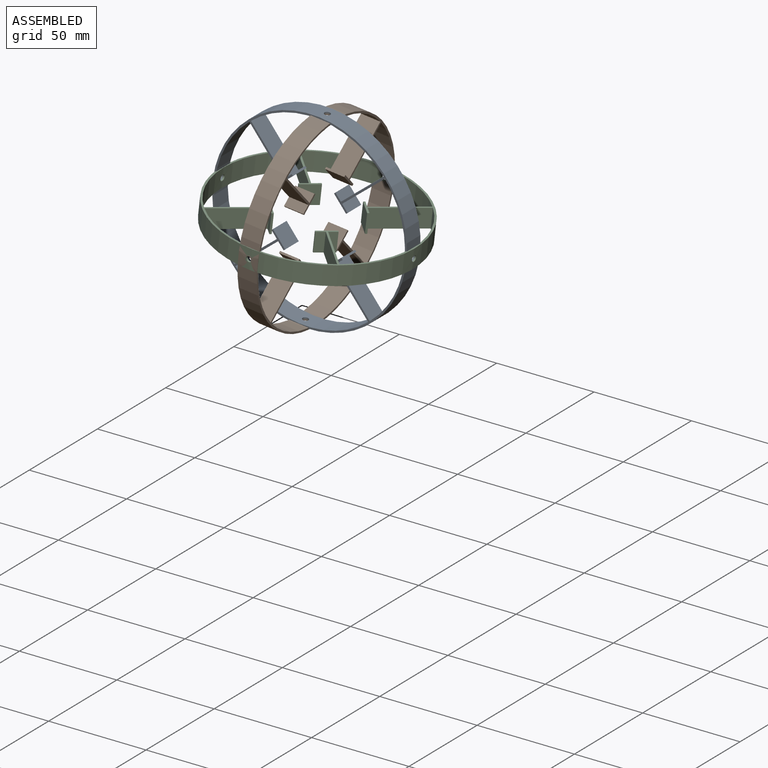
[diagram: assembled view]
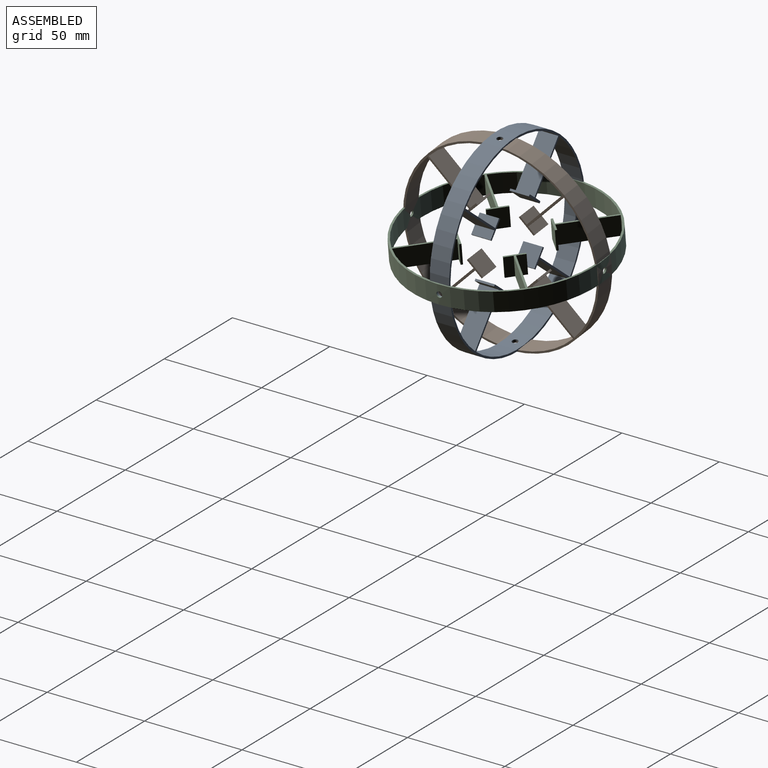
[diagram: assembled view, second angle]
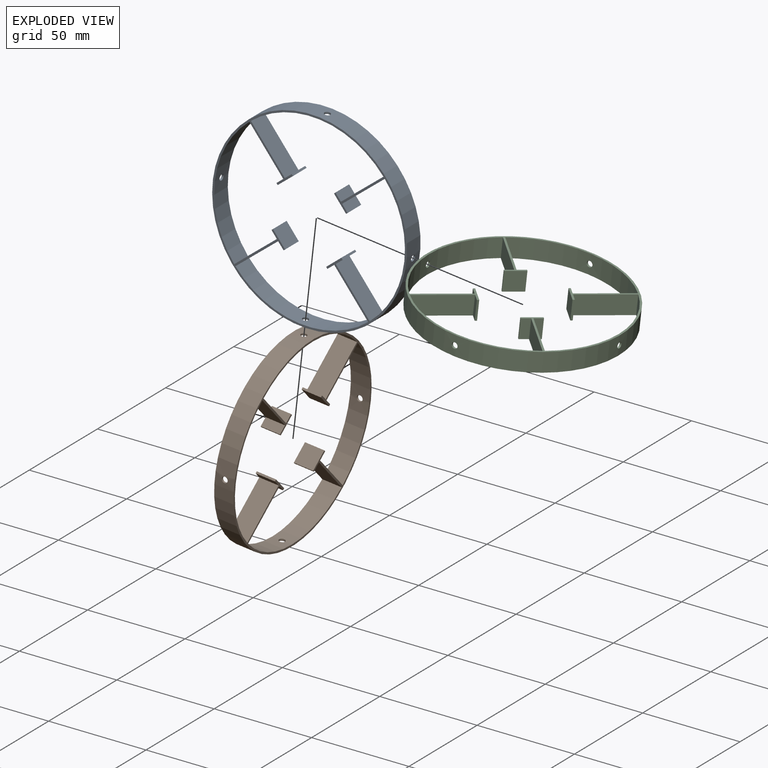
[diagram: exploded view]
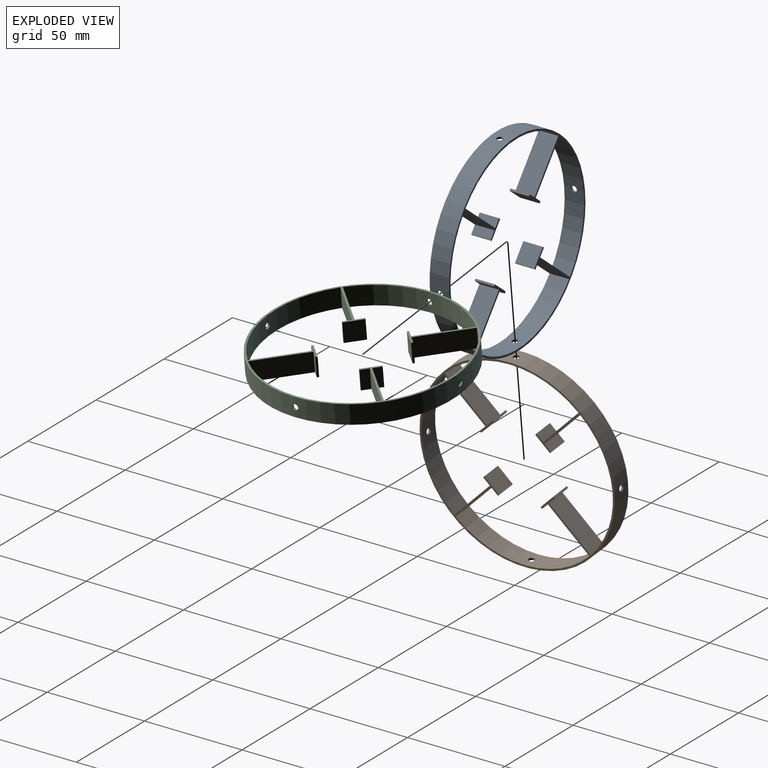
[diagram: exploded view, second angle]
ASSEMBLY  parts=3 mates=2
PART A: 39 faces, bbox 100x100x10 mm
  f0: cylinder r=49mm len=48.5mm, axis (0,0,-1), area 752.6mm2, adj f5,f6,f9,f14,f31
  f1: cylinder r=49mm len=48.5mm, axis (0,0,-1), area 752.6mm2, adj f5,f6,f23,f33,f38
  f2: cylinder r=49mm len=48.5mm, axis (0,0,-1), area 752.6mm2, adj f5,f6,f15,f25,f30
  f3: cylinder r=49mm len=48.5mm, axis (0,0,-1), area 752.6mm2, adj f5,f6,f7,f17,f22
  f4: cylinder r=50mm len=100mm, axis (0,0,-1), area 3112.9mm2, adj f5,f6,f14,f22,f30,f38
  f5: plane 100x100mm, normal (0,0,1), area 463mm2, adj f0,f1,f2,f3,f4,f7,f8,f9
  f6: plane 100x100mm, normal (0,0,-1), area 463mm2, adj f0,f1,f2,f3,f4,f7,f8,f9
  f7: plane 28x10mm, normal (1,0,0), area 280mm2, adj f3,f5,f6,f12
  f8: plane 10x10mm, normal (0,1,0), area 100mm2, adj f5,f6,f10,f13
  f9: plane 28x10mm, normal (-1,0,0), area 280mm2, adj f0,f5,f6,f11
  f10: plane 10x1mm, normal (-1,0,0), area 10mm2, adj f5,f6,f8,f11
  f11: plane 10x4.5mm, normal (0,-1,0), area 45mm2, adj f5,f6,f9,f10
  f12: plane 10x4.5mm, normal (0,-1,0), area 45mm2, adj f5,f6,f7,f13
  f13: plane 10x1mm, normal (1,0,0), area 10mm2, adj f5,f6,f8,f12
  f14: cylinder r=1.5mm len=3mm, axis (0.71,0.71,0), area 9.4mm2, adj f0,f4
  f15: plane 28x10mm, normal (0,1,0), area 280mm2, adj f2,f5,f6,f20
  f16: plane 10x10mm, normal (-1,0,0), area 100mm2, adj f5,f6,f18,f21
  f17: plane 28x10mm, normal (0,-1,0), area 280mm2, adj f3,f5,f6,f19
  f18: plane 10x1mm, normal (0,-1,0), area 10mm2, adj f5,f6,f16,f19
  f19: plane 10x4.5mm, normal (1,0,0), area 45mm2, adj f5,f6,f17,f18
  f20: plane 10x4.5mm, normal (1,0,0), area 45mm2, adj f5,f6,f15,f21
  f21: plane 10x1mm, normal (0,1,0), area 10mm2, adj f5,f6,f16,f20
  f22: cylinder r=1.5mm len=3mm, axis (-0.71,0.71,0), area 9.4mm2, adj f3,f4
  f23: plane 28x10mm, normal (-1,0,0), area 280mm2, adj f1,f5,f6,f28
  f24: plane 10x10mm, normal (0,-1,0), area 100mm2, adj f5,f6,f26,f29
  f25: plane 28x10mm, normal (1,0,0), area 280mm2, adj f2,f5,f6,f27
  f26: plane 10x1mm, normal (1,0,0), area 10mm2, adj f5,f6,f24,f27
  f27: plane 10x4.5mm, normal (0,1,0), area 45mm2, adj f5,f6,f25,f26
  f28: plane 10x4.5mm, normal (0,1,0), area 45mm2, adj f5,f6,f23,f29
  f29: plane 10x1mm, normal (-1,0,0), area 10mm2, adj f5,f6,f24,f28
  f30: cylinder r=1.5mm len=3mm, axis (-0.71,-0.71,0), area 9.4mm2, adj f2,f4
  f31: plane 28x10mm, normal (0,-1,0), area 280mm2, adj f0,f5,f6,f36
  f32: plane 10x10mm, normal (1,0,0), area 100mm2, adj f5,f6,f34,f37
  f33: plane 28x10mm, normal (0,1,0), area 280mm2, adj f1,f5,f6,f35
  f34: plane 10x1mm, normal (0,1,0), area 10mm2, adj f5,f6,f32,f35
  f35: plane 10x4.5mm, normal (-1,0,0), area 45mm2, adj f5,f6,f33,f34
  f36: plane 10x4.5mm, normal (-1,0,0), area 45mm2, adj f5,f6,f31,f37
  f37: plane 10x1mm, normal (0,-1,0), area 10mm2, adj f5,f6,f32,f36
  f38: cylinder r=1.5mm len=3mm, axis (0.71,-0.71,0), area 9.4mm2, adj f1,f4
PART B: same geometry as A
PART C: same geometry as A
PLACE A rot(axis=(-0.32,-0.67,-0.67),144.2deg) t=(0,-58.64,0)mm
PLACE B rot(axis=(-0.35,-0.85,0.39),92.9deg) t=(4.91,-53.64,-1.08)mm
PLACE C rot(axis=(0.92,-0.38,-0.05),177.5deg) t=(1.08,-53.64,4.91)mm
MATE revolute C.f22 <-> A.f22  axis (0.99,0,-0.11) through (-48.66,-53.64,5.53)mm
MATE revolute B.f22 <-> A.f14  axis (0.11,0,0.99) through (-5.65,-53.64,-49.69)mm
